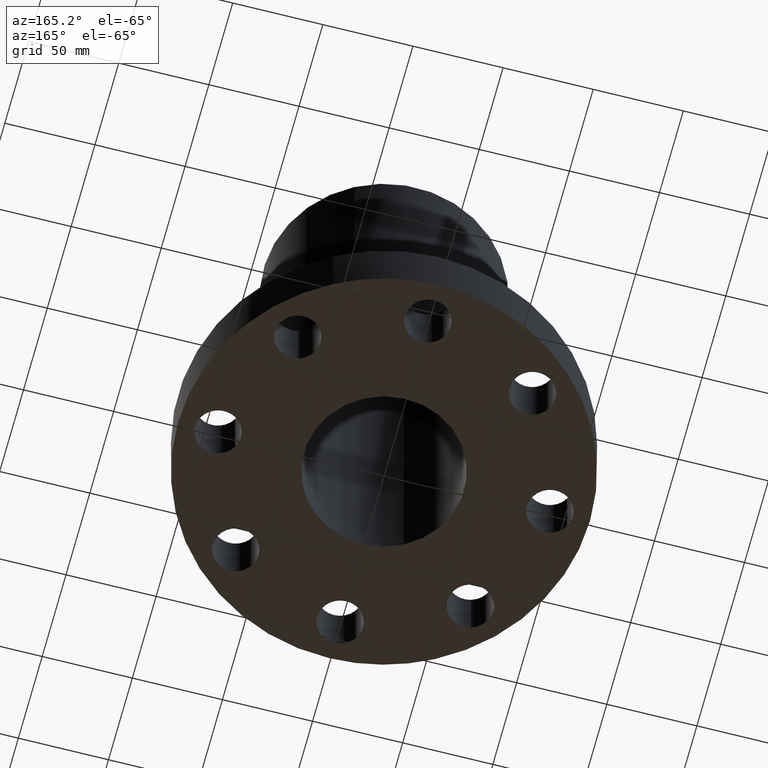
[diagram: clean part render]
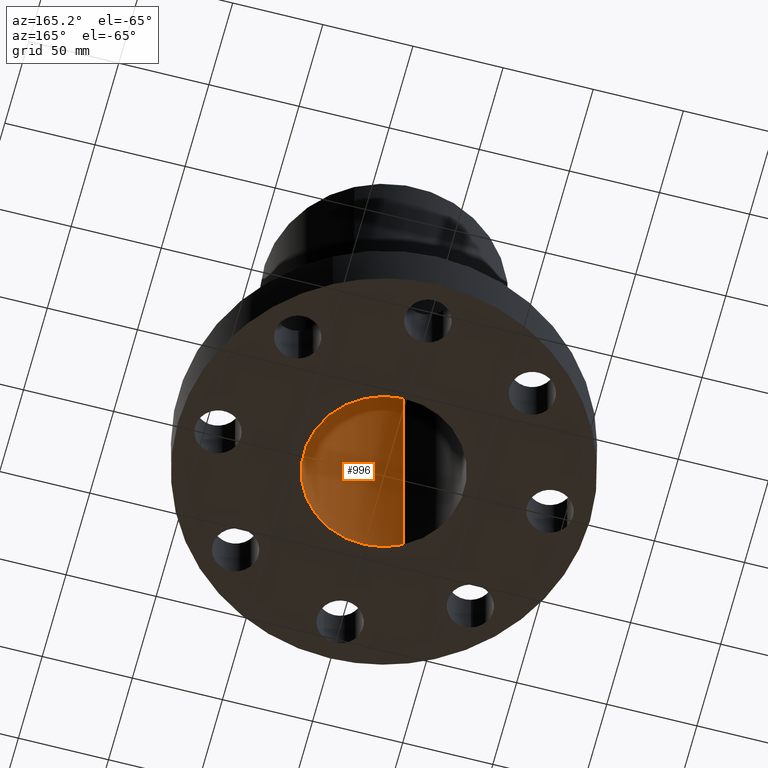
[diagram: same view with one face highlighted and labeled with its STEP entity id]
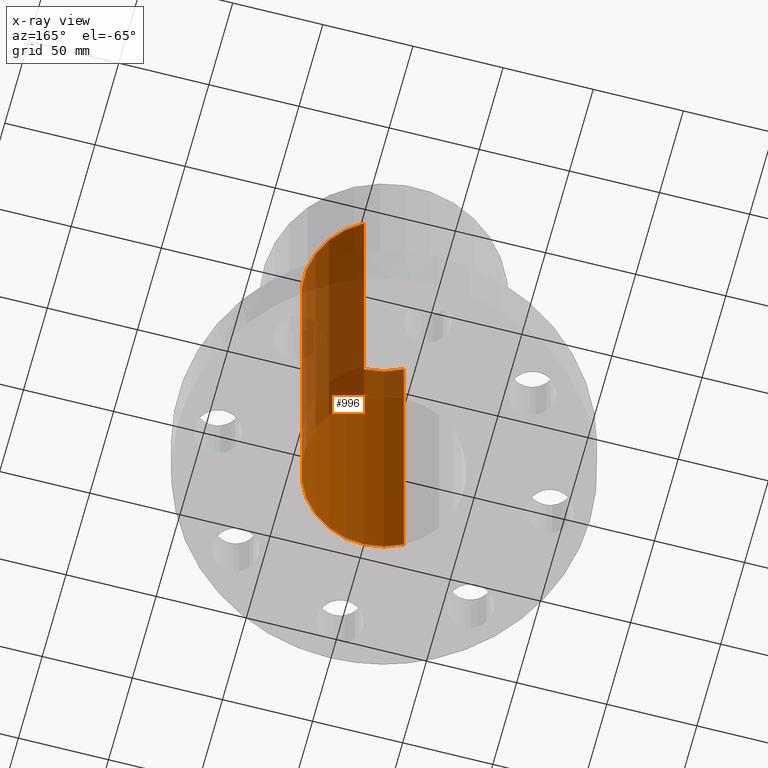
[diagram: x-ray of the same camera — body ghosted, the highlighted face saturated]
A machine part, auxiliary view. The second image highlights one B-rep face of the part: STEP entity #996.
The next image is the same camera in x-ray: the body ghosted, the highlighted face saturated — about 40% of this face is hidden behind the body in this view.
In plain terms, the highlighted cylindrical surface (partial cylindrical patch) has radius 44.45 mm, axis along (0, 0, -1).
Its self-contained STEP definition (entity closure, byte-faithful):
#779=AXIS2_PLACEMENT_3D('Circle Axis2P3D',#777,#778,$) ;
#969=AXIS2_PLACEMENT_3D('Cylinder Axis2P3D',#966,#967,#968) ;
#973=AXIS2_PLACEMENT_3D('Circle Axis2P3D',#971,#972,$) ;
#772=CARTESIAN_POINT('Vertex',(-0.838994692561,-1.53576948331,8.75000000004)) ;
#774=CARTESIAN_POINT('Vertex',(0.838994692561,1.53576948331,8.75000000004)) ;
#777=CARTESIAN_POINT('Axis2P3D Location',(0.,0.,8.75000000003)) ;
#966=CARTESIAN_POINT('Axis2P3D Location',(0.,0.,4.25000000002)) ;
#971=CARTESIAN_POINT('Axis2P3D Location',(0.,0.,0.)) ;
#975=CARTESIAN_POINT('Vertex',(-0.838994692561,-1.53576948331,0.)) ;
#977=CARTESIAN_POINT('Vertex',(0.838994692561,1.53576948331,0.)) ;
#980=CARTESIAN_POINT('Line Origine',(-0.838994692561,-1.53576948331,4.37500000002)) ;
#985=CARTESIAN_POINT('Line Origine',(0.838994692561,1.53576948331,4.37500000002)) ;
#778=DIRECTION('Axis2P3D Direction',(0.,0.,-0.0393700787402)) ;
#967=DIRECTION('Axis2P3D Direction',(0.,0.,-0.0393700787402)) ;
#968=DIRECTION('Axis2P3D XDirection',(-0.0188750212049,-0.0345504945626,0.)) ;
#972=DIRECTION('Axis2P3D Direction',(0.,0.,-0.0393700787402)) ;
#981=DIRECTION('Vector Direction',(0.,0.,-0.0393700787402)) ;
#986=DIRECTION('Vector Direction',(0.,0.,-0.0393700787402)) ;
#982=VECTOR('Line Direction',#981,0.0393700787402) ;
#987=VECTOR('Line Direction',#986,0.0393700787402) ;
#991=ORIENTED_EDGE('',*,*,#979,.F.) ;
#992=ORIENTED_EDGE('',*,*,#984,.F.) ;
#993=ORIENTED_EDGE('',*,*,#781,.F.) ;
#994=ORIENTED_EDGE('',*,*,#989,.T.) ;
#996=ADVANCED_FACE('PartBody',(#995),#970,.F.) ;
#780=CIRCLE('generated circle',#779,1.75000000001) ;
#974=CIRCLE('generated circle',#973,1.75000000001) ;
#970=CYLINDRICAL_SURFACE('generated cylinder',#969,1.75000000001) ;
#781=EDGE_CURVE('',#775,#773,#780,.T.) ;
#979=EDGE_CURVE('',#976,#978,#974,.F.) ;
#984=EDGE_CURVE('',#773,#976,#983,.T.) ;
#989=EDGE_CURVE('',#775,#978,#988,.T.) ;
#990=EDGE_LOOP('',(#991,#992,#993,#994)) ;
#995=FACE_OUTER_BOUND('',#990,.T.) ;
#983=LINE('Line',#980,#982) ;
#988=LINE('Line',#985,#987) ;
#773=VERTEX_POINT('',#772) ;
#775=VERTEX_POINT('',#774) ;
#976=VERTEX_POINT('',#975) ;
#978=VERTEX_POINT('',#977) ;